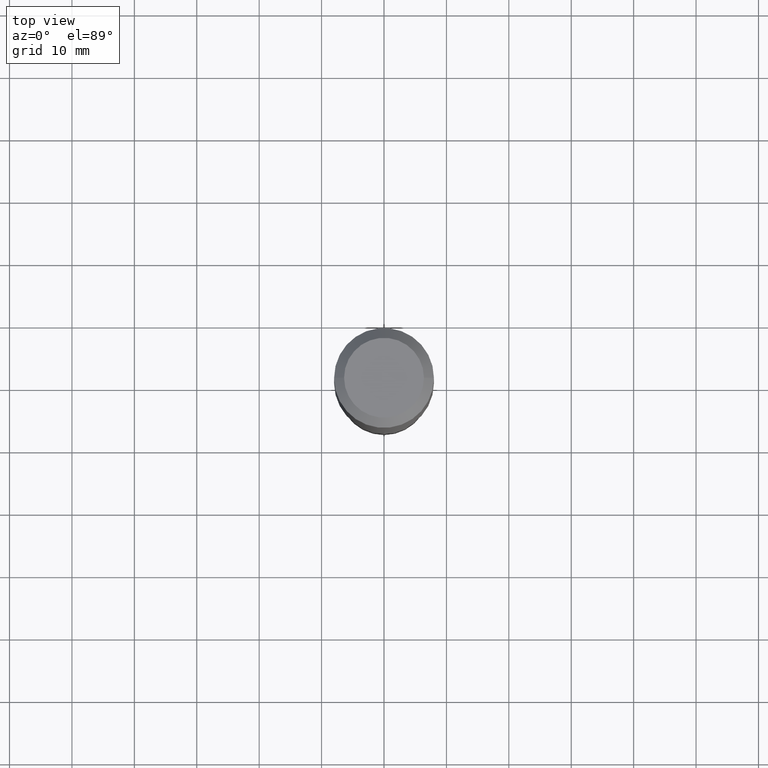
[diagram: clean part render]
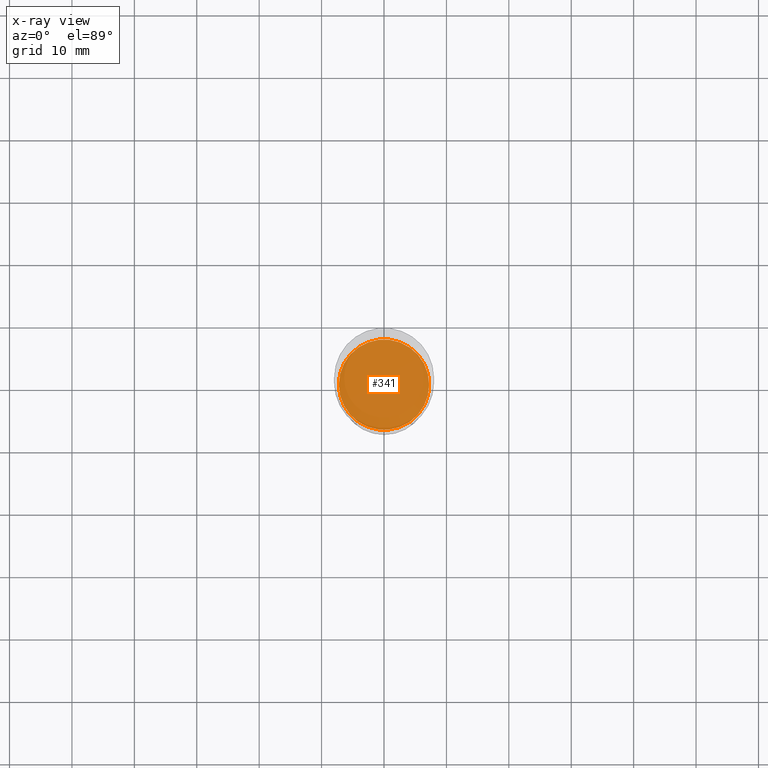
[diagram: x-ray — body ghosted, one internal face saturated and labeled with its STEP entity id]
A machine part, top view, then the same camera in x-ray: the body is ghosted and one INTERNAL B-rep face — a face not visible from any outside direction — is saturated and labeled: STEP entity #341.
In plain terms, the highlighted planar face has unit normal (-0, 0, 1).
Its self-contained STEP definition (entity closure, byte-faithful):
#6 = AXIS2_PLACEMENT_3D ( 'NONE', #238, #385, #389 ) ;
#21 = AXIS2_PLACEMENT_3D ( 'NONE', #229, #151, #302 ) ;
#41 = CARTESIAN_POINT ( 'NONE',  ( 6.210023486426534966E-29, -8.866267711858282579E-15, -2.539399999999999658 ) ) ;
#69 = CARTESIAN_POINT ( 'NONE',  ( 0.2849499999999999811, -1.085606292686498256E-14, -2.539399999999999658 ) ) ;
#76 = PLANE ( 'NONE',  #204 ) ;
#79 = ORIENTED_EDGE ( 'NONE', *, *, #371, .F. ) ;
#151 = DIRECTION ( 'NONE',  ( -2.445468806185136597E-29, 3.491481338843145583E-15, 1.000000000000000000 ) ) ;
#204 = AXIS2_PLACEMENT_3D ( 'NONE', #41, #306, #383 ) ;
#229 = CARTESIAN_POINT ( 'NONE',  ( 6.210023486426534966E-29, -8.866267711858282579E-15, -2.539399999999999658 ) ) ;
#238 = CARTESIAN_POINT ( 'NONE',  ( 6.210023486426534966E-29, -8.866267711858282579E-15, -2.539399999999999658 ) ) ;
#244 = CARTESIAN_POINT ( 'NONE',  ( -0.2849499999999999811, -6.838926959135765639E-15, -2.539399999999999658 ) ) ;
#268 = ORIENTED_EDGE ( 'NONE', *, *, #329, .F. ) ;
#302 = DIRECTION ( 'NONE',  ( 1.000000000000000000, -6.982962677686263555E-15, 0.000000000000000000 ) ) ;
#306 = DIRECTION ( 'NONE',  ( -2.438088387897960049E-29, 3.491481338843145188E-15, 1.000000000000000000 ) ) ;
#311 = VERTEX_POINT ( 'NONE', #69 ) ;
#329 = EDGE_CURVE ( 'NONE', #311, #490, #425, .T. ) ;
#341 = ADVANCED_FACE ( 'NONE', ( #461 ), #76, .F. ) ;
#371 = EDGE_CURVE ( 'NONE', #490, #311, #437, .T. ) ;
#383 = DIRECTION ( 'NONE',  ( 1.000000000000000000, -6.982962677686265922E-15, 4.876176775795935793E-29 ) ) ;
#385 = DIRECTION ( 'NONE',  ( -2.445468806185136597E-29, 3.491481338843145583E-15, 1.000000000000000000 ) ) ;
#389 = DIRECTION ( 'NONE',  ( 1.000000000000000000, -6.982962677686263555E-15, 0.000000000000000000 ) ) ;
#408 = EDGE_LOOP ( 'NONE', ( #268, #79 ) ) ;
#425 = CIRCLE ( 'NONE', #21, 0.2849499999999999811 ) ;
#437 = CIRCLE ( 'NONE', #6, 0.2849499999999999811 ) ;
#461 = FACE_OUTER_BOUND ( 'NONE', #408, .T. ) ;
#490 = VERTEX_POINT ( 'NONE', #244 ) ;